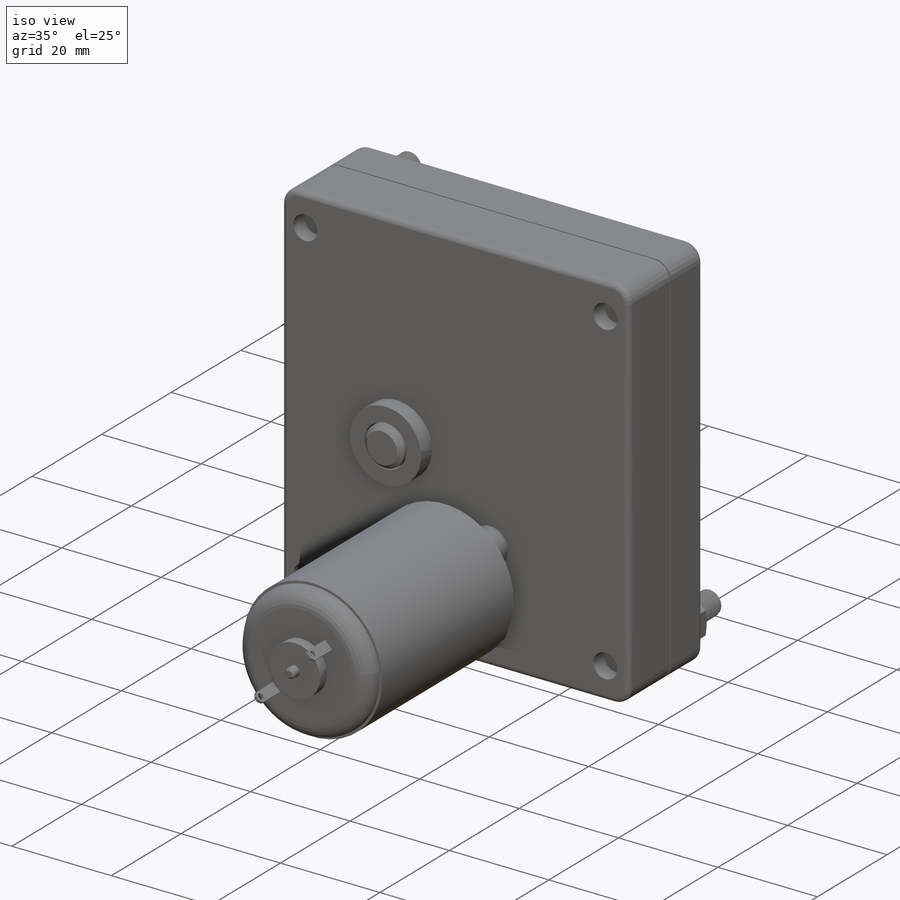
[diagram: iso view]
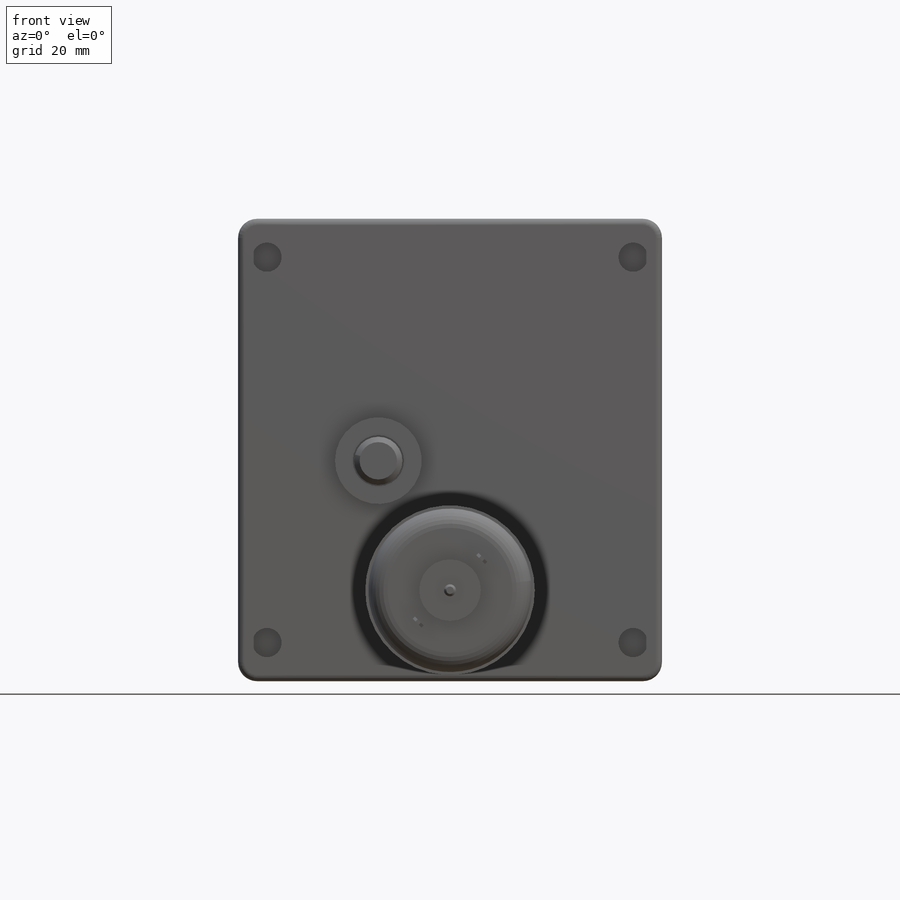
[diagram: front view]
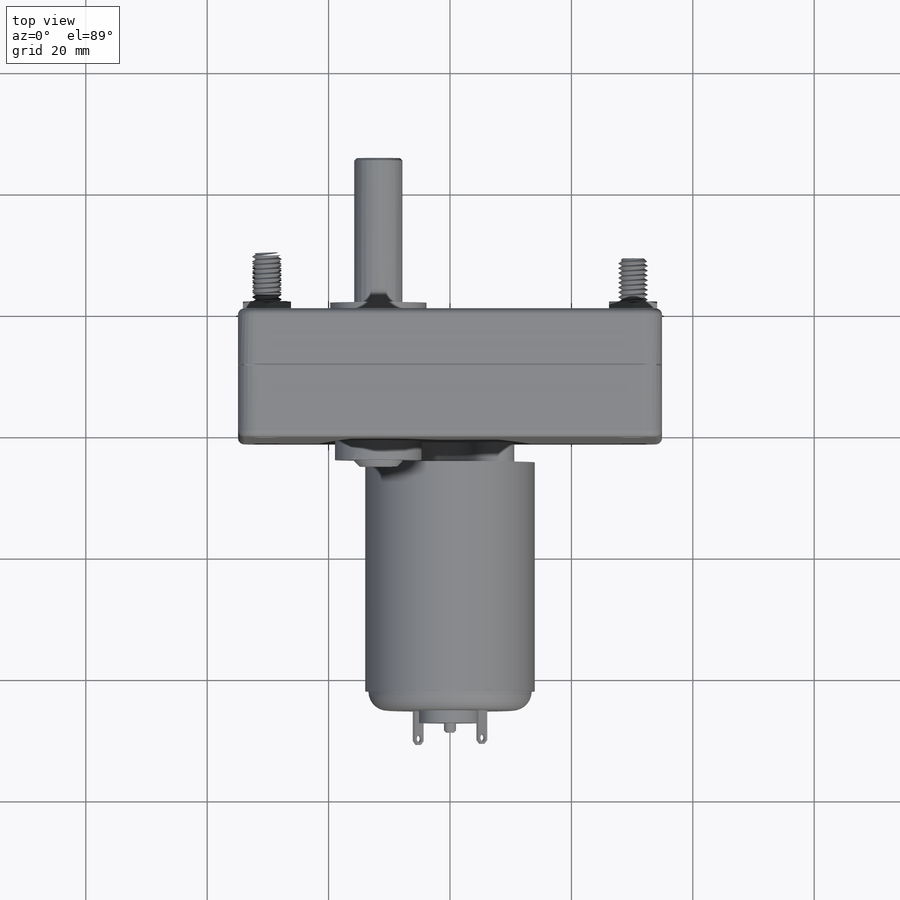
[diagram: top view]
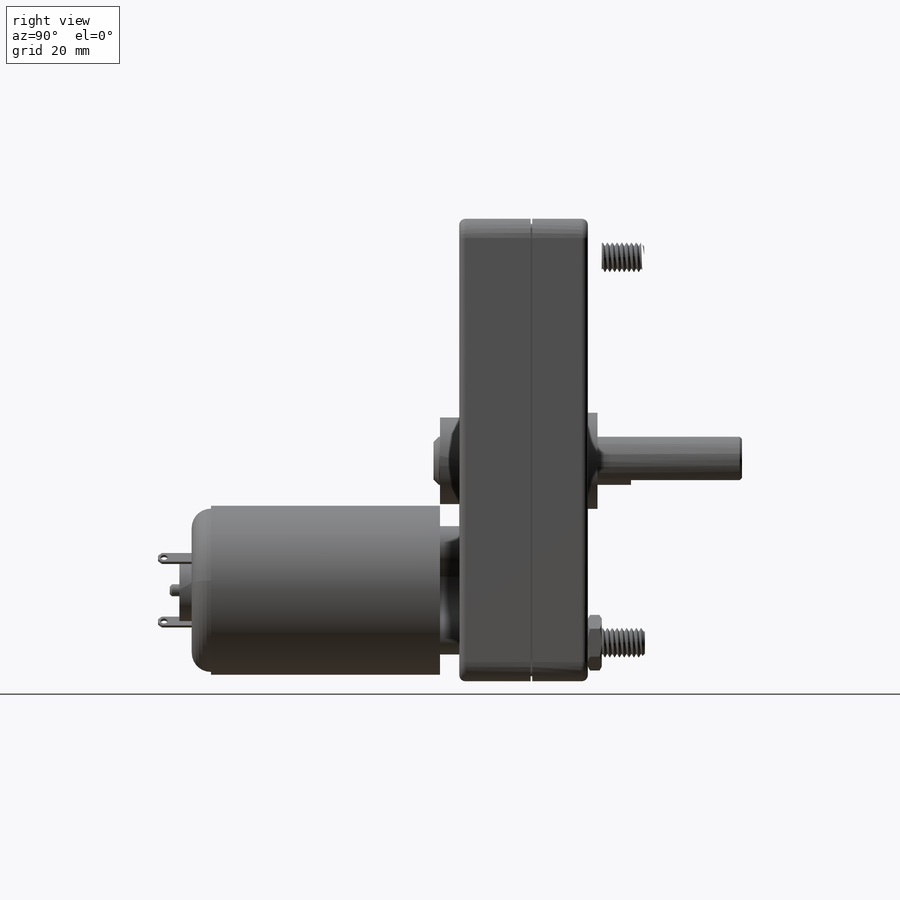
[diagram: right view]
SOLIDWORKS PART (.sldprt)
format: sldprt  version: not decoded by parser v0  size: 1,506,304 bytes
history: native  units: mm
features: sketch x23, extrude x12, cut_extrude x6, chamfer x5, fillet x3, plane x3, pattern_linear x2, material x1, helix x1, sweep x1, boolean_combine x1 (+15 scaffold rows collapsed)
feature tree (73):
  scaffold x15  (default folders/planes/origin — collapsed)
  material  "Material <not specified>"
  sketch  "Sketch1"  dims[D1=69.85mm D2=76.2mm D3=60.325mm D4=63.5mm D5=3657.6mm D6=4572.0mm]
  extrude  "Extrude1"  Depth=21.1836mm
  fillet  "Fillet1"  Radius=3.175mm
  fillet  "Fillet2"  Radius=1.016mm
  plane  "Plane1"  Offset=9.2964mm
  sketch  "Sketch2"  dims[c1.D2=1.5875mm c1.D1=0.0mm c2.D1=0.254mm c2.D5=1.651mm c2.D6=1.0mm c2.D7=5.0mm]
  sketch  "Sketch4"  dims[D1=4.826mm]
  extrude  "Extrude2"  Depth=9.398mm
  plane  "Plane2"
  sketch  "Sketch6"
  helix  "Helix/Spiral1"  Pitch=10.16mm
  chamfer  "Chamfer1"  Distance=0.635mm Angle=45deg
  sketch  "Sketch5"  dims[c1.D1=0.1016mm c1.D2=0.4064mm c1.D3=~1.534664mm c2.D3=60.0deg]
  sweep  "Cut-Sweep1"
  sketch  "Sketch7"  dims[D1=7.9375mm]
  extrude  "Extrude3"  Depth=2.286mm
  sketch  "Sketch8"
  cut_extrude  "Cut-Extrude1"  Depth=2.286mm
  sketch  "Sketch9"
  cut_extrude  "Cut-Extrude2"  Depth=2.286mm
  pattern_linear  "LPattern1"  Count1=2 Count2=1 Spacing1=60.325mm Spacing2=50mm
  pattern_linear  "LPattern2"  Count1=2 Count2=1 Spacing1=63.5mm Spacing2=50mm
  sketch  "Sketch10"  dims[D1=4.826mm]
  cut_extrude  "Cut-Extrude3"  Depth=3.175mm
  sketch  "Sketch11"  dims[D3=15.875mm D1=46.736mm D2=29.8958mm a=36.322mm b=46.736mm A=36.322mm]
  extrude  "Extrude4"  Depth=1.5875mm
  sketch  "Sketch12"  dims[D1=~3.96875mm D2=7.1501mm]
  extrude  "Extrude6"  Depth=25.4mm
  chamfer  "Chamfer2"  Distance=0.381mm Angle=45deg
  sketch  "Sketch14"
  extrude  "Extrude7"  Depth=18.288mm
  sketch  "Sketch15"  dims[D1=3.9624mm D5=0.254mm D6=1.0mm D7=5.0mm]
  sketch  "Sketch16"  dims[D1=14.2875mm]
  extrude  "Extrude8"  Depth=3.175mm
  sketch  "Sketch17"
  extrude  "Extrude9"  Depth=1.0795mm
  sketch  "Sketch18"  dims[D1=1.5875mm D5=0.254mm D6=1.0mm D7=5.0mm]
  chamfer  "Chamfer3"  Distance=0.889mm Angle=45deg
  plane  "Plane3"  Offset=3.175mm
  sketch  "Sketch19"  dims[D1=27.94mm D2=4.7625mm]
  extrude  "Extrude10"  Depth=92.71mm c=92.71mm
  sketch  "Sketch20"  dims[D1=10.16mm]
  cut_extrude  "Cut-Extrude4"  Depth=2.032mm
  sketch  "Sketch21"  dims[D1=0.0mm D2=0.508mm]
  cut_extrude  "Cut-Extrude5"  Depth=3.175mm
  fillet  "Fillet3"  Radius=3.175mm
  sketch  "Sketch22"  dims[D1=1.9812mm]
  extrude  "Extrude11"  Depth=1.5875mm
  chamfer  "Chamfer4"  Distance=0.381mm Angle=45deg
  sketch  "Sketch23"  dims[c1.D1=~3.261606mm c2.D1=45.0deg c2.D2=0.508mm c2.D3=2.032mm c2.D4=7.1501mm]
  extrude  "Extrude12"  Depth=5.5499mm
  chamfer  "Chamfer5"  Distance=0.635mm Angle=45deg
  sketch  "Sketch24"  dims[D1=1.143mm]
  cut_extrude  "Cut-Extrude6"  [1 undecoded]
  sketch  "Sketch25"  dims[c1.D1=~15.16645mm c1.D2=~4.176197mm c2.D1=6.35mm]
  extrude  "Extrude13"  Depth=3.175mm
  boolean_combine  "Combine1"
decode coverage: 46 of 54 modeling features carry decoded parameters
note: ~ marks probable driven/reference dimensions
note: 1 parameter value undecoded
note: suppression state not decoded; provenance and decode notes live in map.json
